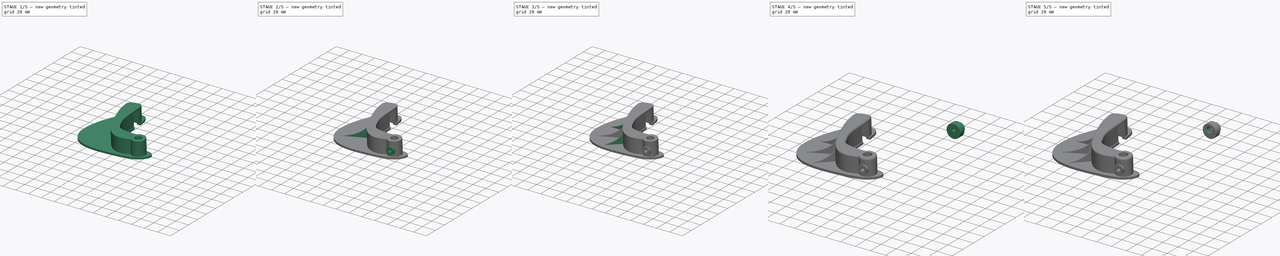
[diagram: build sequence overview — one tinted view per stage of 5, left to right]
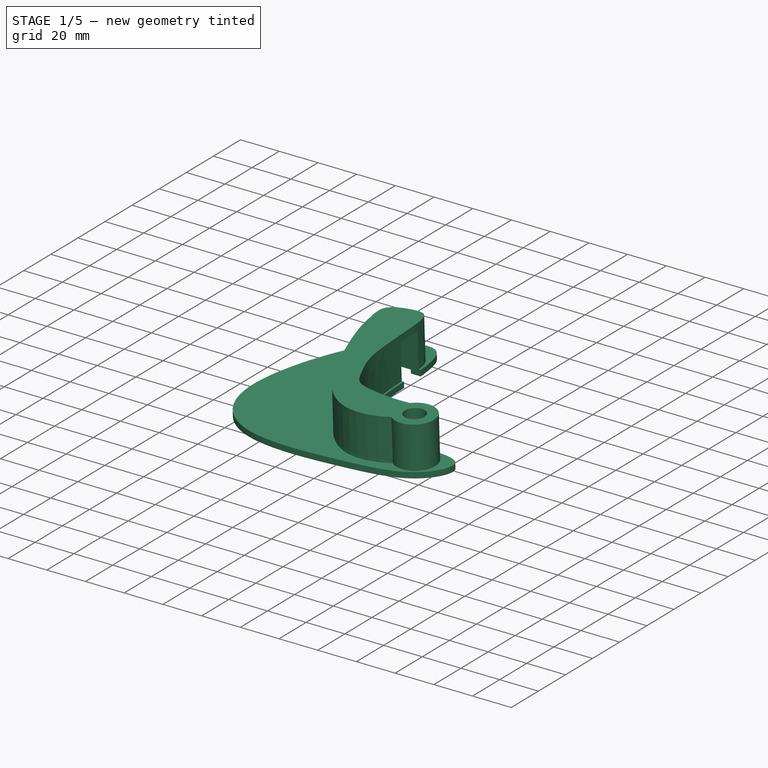
[diagram: stage 1 of 5 — iso view after this stage's code; geometry added in this stage tinted green]
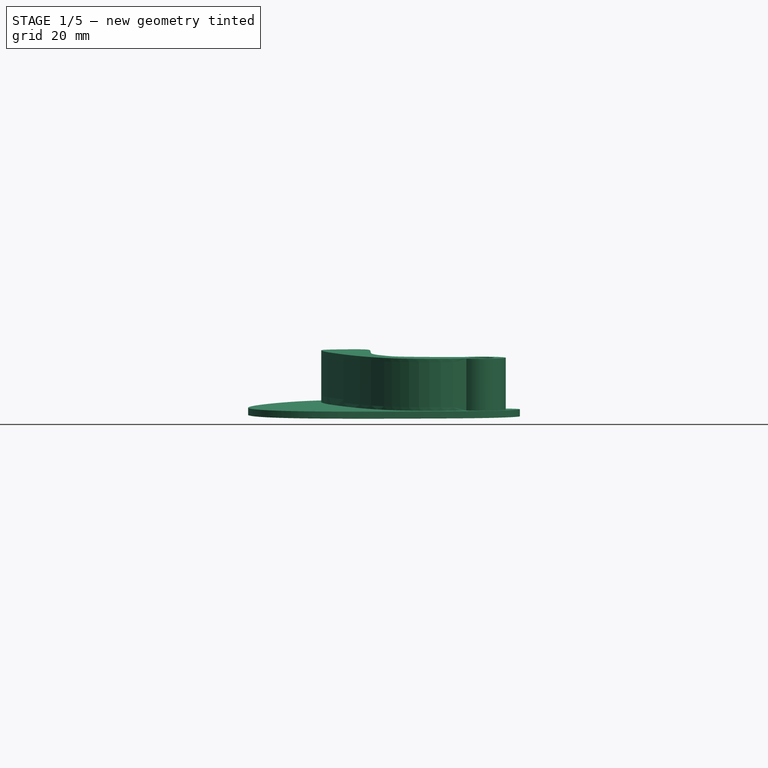
[diagram: stage 1 of 5 — front view after this stage's code; geometry added in this stage tinted green]
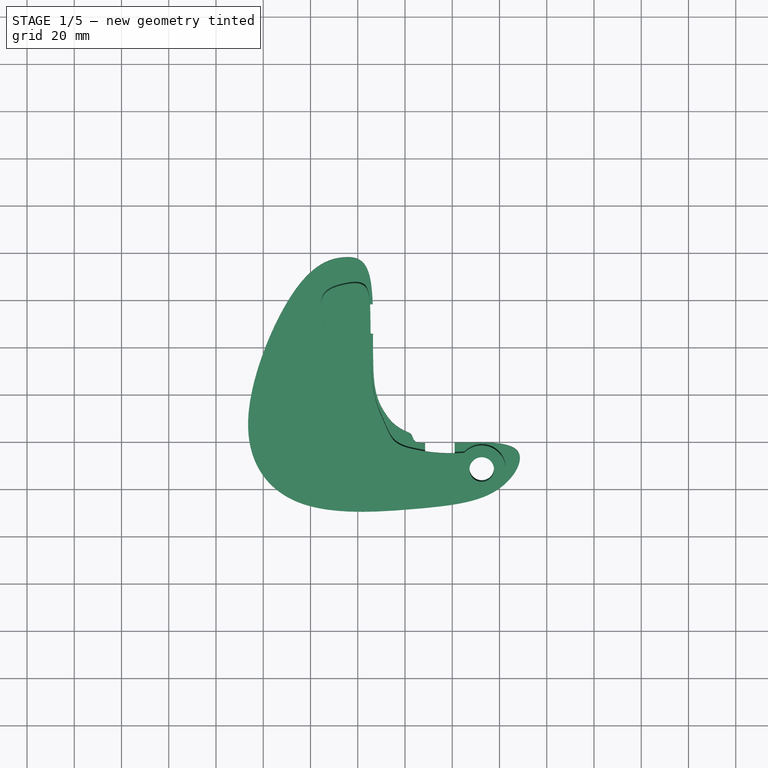
[diagram: stage 1 of 5 — top view after this stage's code; geometry added in this stage tinted green]
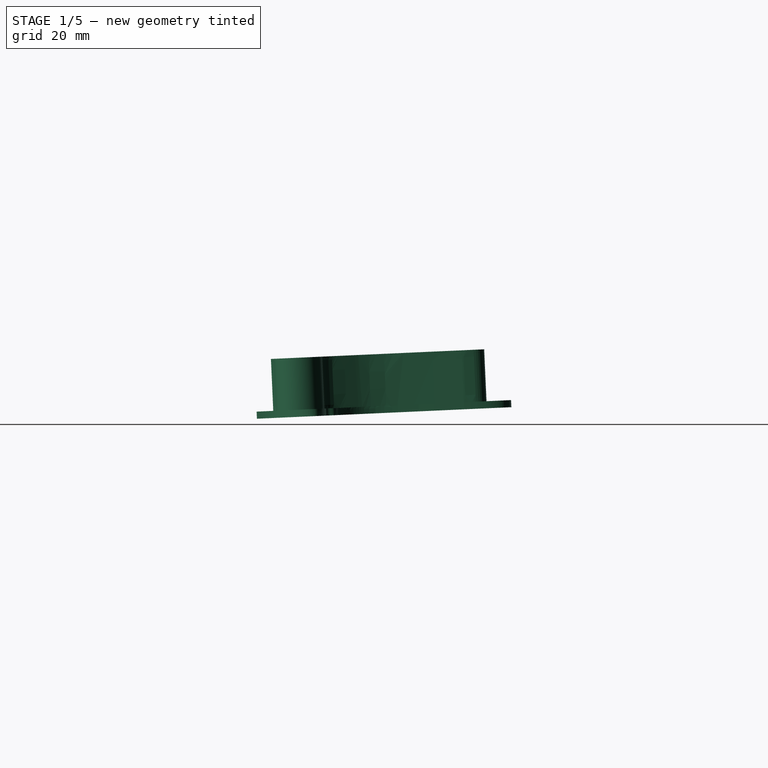
[diagram: stage 1 of 5 — right view after this stage's code; geometry added in this stage tinted green]
FCSTD DOCUMENT  (FreeCAD 0.19R24291 (Git))
Label: mezzo_pulpito_v2
License: All rights reserved
LicenseURL: http://en.wikipedia.org/wiki/All_rights_reserved
objects: Sketcher::SketchObject×11, PartDesign::Pad×8, PartDesign::Plane×4, PartDesign::Pocket×3, PartDesign::Body×3, PartDesign::ShapeBinder×2, PartDesign::Chamfer×2, PartDesign::Fillet×2, PartDesign::FeatureBase×1
note: 51 computed .brp shape members not serialized (recipe doc carries the construction recipe); baked Part::Feature solids carry a one-line shape summary decoded from their .brp

FEATURE [PartDesign::ShapeBinder] CopyPart__Feature001
  TraceSupport = false
FEATURE [PartDesign::ShapeBinder] CopyPart__Feature
  TraceSupport = false
FEATURE [PartDesign::Plane] DatumPlane
  Length = 139.761
  MapMode = 45
  Placement = pos=(0,76.6965,-46.0705) rot=(0.022662,-0.022662,0.999486;1.57131rad)
  ResizeMode = 0
  Support = -> [CopyPart__Feature,CopyPart__Feature001]
  Width = 199.066
FEATURE [Sketcher::SketchObject] Sketch  label="plate"
  FullyConstrained = false
  MapMode = 5
  Placement = pos=(0,76.6965,-46.0705) rot=(0.022662,-0.022662,0.999486;1.57131rad)
  Support = -> [DatumPlane]
  sketch-geometry (38):
    g0-g17: Circle x18 (B-spline internal-alignment scaffolding for g18; pole/knot coordinates omitted)
    g18: BSplineCurve PolesCount=18 KnotsCount=19 Degree=3 IsPeriodic=1
    g19-g36: GeomPoint x18 (B-spline internal-alignment scaffolding for g18; pole/knot coordinates omitted)
    g37: Circle CenterX=-87.641 CenterY=47.5346 CenterZ=0 NormalX=0 NormalY=0 NormalZ=1 AngleXU=0 Radius=5.2
  constraints (5):
    c: Weight(g0) = 1
    c: Equal(g0, g1-g17) x17
    c: InternalAlignment(g0-g17 -> g18) x18
    c: InternalAlignment(g19-g36 -> g18) x18
    c: Radius(g37) = 5.2
FEATURE [Sketcher::SketchObject] Sketch004  label="side"
  ExternalGeometry = -> [Sketch]
  FullyConstrained = false
  MapMode = 5
  Placement = pos=(0,76.5606,-43.0736) rot=(0.022662,-0.022662,0.999486;1.57131rad)
  sketch-geometry (41):
    g0: Circle CenterX=-80.5788 CenterY=54.8912 CenterZ=0 NormalX=0 NormalY=0 NormalZ=1 AngleXU=0 Radius=1
    g1: Circle CenterX=-81.2795 CenterY=64.643 CenterZ=0 NormalX=0 NormalY=0 NormalZ=1 AngleXU=0 Radius=1
    g2: BSplineCurve PolesCount=3 KnotsCount=2 Degree=2 IsPeriodic=0
    g3: GeomPoint X=-80.5788 Y=54.8912 Z=0
    g4: GeomPoint X=-79.6966 Y=73.0826 Z=0
    g5-g21: Circle x17 (B-spline internal-alignment scaffolding for g22; pole/knot coordinates omitted)
    g22: BSplineCurve PolesCount=18 KnotsCount=16 Degree=3 IsPeriodic=0
    g23-g38: GeomPoint x16 (B-spline internal-alignment scaffolding for g22; pole/knot coordinates omitted)
    g39: ArcOfCircle CenterX=-87.641 CenterY=47.5346 CenterZ=0 NormalX=0 NormalY=0 NormalZ=1 AngleXU=0 Radius=10.1977 StartAngle=2.44857 EndAngle=7.089
    g40: Circle CenterX=-87.641 CenterY=47.5346 CenterZ=0 NormalX=0 NormalY=0 NormalZ=1 AngleXU=0 Radius=5.2
  constraints (14):
    c: Weight(g0) = 1
    c: Equal(g0,g1)
    c: InternalAlignment(g0,g2)
    c: InternalAlignment(g1,g2)
    c: InternalAlignment(g3,g2)
    c: InternalAlignment(g4,g2)
    c: InternalAlignment(g5-g21 -> g22) x17
    c: InternalAlignment(g23-g38 -> g22) x16
    c: Coincident(g40,g39)
    c: Radius(g40) = 5.2
    c: Coincident(g22,g2)
    c: Coincident(g2,g39)
    c: Coincident(g22,g39)
    c: Coincident(g39,g-3)
FEATURE [PartDesign::Pad] Pad
  Direction = (1,1,1)
  Length = 3
  Length2 = 100
  Placement = pos=(0,76.6965,-46.0705) rot=(0.022662,-0.022662,0.999486;1.57131rad)
  Profile = -> Sketch
  Refine = true
  Type = 0
FEATURE [PartDesign::Pad] Pad004
  BaseFeature = -> Pad
  Direction = (1,1,1)
  Length = 22
  Length2 = 100
  Placement = pos=(0,76.6965,-46.0705) rot=(0.022662,-0.022662,0.999486;1.57131rad)
  Profile = -> Sketch004
  Refine = true
  Type = 0
FEATURE [Sketcher::SketchObject] Sketch008
  AttachmentOffset = pos=(0,0,1) rot=(0,0,1;0rad)
  FullyConstrained = false
  MapMode = 5
  Placement = pos=(0,76.7418,-47.0695) rot=(0.707016,0.707016,0.01603;3.17365rad)
  Support = -> [Pad004]
  sketch-geometry (16):
    g0: LineSegment StartX=-75.2861 StartY=-59.0042 StartZ=0 EndX=-81.2861 EndY=-59.0042 EndZ=0
    g1: LineSegment StartX=-81.2861 StartY=-71.5042 StartZ=0 EndX=-75.2861 EndY=-71.5042 EndZ=0
    g2: LineSegment StartX=-75.2861 StartY=-71.5042 StartZ=0 EndX=-75.2861 EndY=-59.0042 EndZ=0
    g3: LineSegment StartX=-90.0861 StartY=-56.0042 StartZ=0 EndX=-81.2861 EndY=-56.0042 EndZ=0
    g4: LineSegment StartX=-81.2861 StartY=-74.5042 StartZ=0 EndX=-90.0861 EndY=-74.5042 EndZ=0
    g5: LineSegment StartX=-90.0861 StartY=-74.5042 StartZ=0 EndX=-90.0861 EndY=-56.0042 EndZ=0
    g6: LineSegment StartX=-81.2861 StartY=-59.0042 StartZ=0 EndX=-81.2861 EndY=-56.0042 EndZ=0
    g7: LineSegment StartX=-81.2861 StartY=-74.5042 StartZ=0 EndX=-81.2861 EndY=-71.5042 EndZ=0
    g8: LineSegment StartX=-30.8421 StartY=-92.3713 StartZ=0 EndX=-30.8421 EndY=-98.3713 EndZ=0
    g9: LineSegment StartX=-30.8421 StartY=-98.3713 StartZ=0 EndX=-33.8421 EndY=-98.3713 EndZ=0
    g10: LineSegment StartX=-33.8421 StartY=-98.3713 StartZ=0 EndX=-33.8421 EndY=-107.171 EndZ=0
    g11: LineSegment StartX=-33.8421 StartY=-107.171 StartZ=0 EndX=-15.3421 EndY=-107.171 EndZ=0
    g12: LineSegment StartX=-15.3421 StartY=-107.171 StartZ=0 EndX=-15.3421 EndY=-98.7791 EndZ=0
    g13: LineSegment StartX=-15.3421 StartY=-98.7791 StartZ=0 EndX=-18.3421 EndY=-98.7791 EndZ=0
    g14: LineSegment StartX=-18.3421 StartY=-98.7791 StartZ=0 EndX=-18.3421 EndY=-92.3713 EndZ=0
    g15: LineSegment StartX=-18.3421 StartY=-92.3713 StartZ=0 EndX=-30.8421 EndY=-92.3713 EndZ=0
  constraints (43):
    c: Coincident(g1,g2)
    c: Coincident(g2,g0)
    c: Horizontal(g0)
    c: Horizontal(g1)
    c: Vertical(g2)
    c: DistanceY(g2,g2) = 12.5
    c: Coincident(g4,g5)
    c: Coincident(g5,g3)
    c: Horizontal(g3)
    c: Horizontal(g4)
    c: Vertical(g5)
    c: Coincident(g6,g0)
    c: Coincident(g6,g3)
    c: Coincident(g7,g4)
    c: Coincident(g7,g1)
    c: Parallel(g7,g6)
    c: Parallel(g6,g2)
    c: Distance(g0) = 6
    c: Distance(g1) = 6
    c: Distance(g5) = 18.5
    c: Distance(g3) = 8.8
    c: Distance(g6) = 3
    c: Vertical(g8)
    c: Coincident(g8,g9)
    c: Horizontal(g9)
    c: Coincident(g9,g10)
    c: Vertical(g10)
    c: Coincident(g10,g11)
    c: Horizontal(g11)
    c: Coincident(g11,g12)
    c: Vertical(g12)
    c: Coincident(g12,g13)
    c: Horizontal(g13)
    c: Coincident(g13,g14)
    c: Vertical(g14)
    c: Coincident(g14,g15)
    c: Coincident(g15,g8)
    c: Horizontal(g15)
    c: Equal(g11,g5)
    c: Equal(g15,g2)
    c: Equal(g8,g1)
    c: Equal(g9,g6)
    c: Equal(g10,g3)
FEATURE [PartDesign::Pocket] Pocket001
  BaseFeature = -> Pad004
  Length = 22.5
  Length2 = 100
  Placement = pos=(0,76.6965,-46.0705) rot=(0.022662,-0.022662,0.999486;1.57131rad)
  Profile = -> Sketch008
  Refine = true
  Type = 0
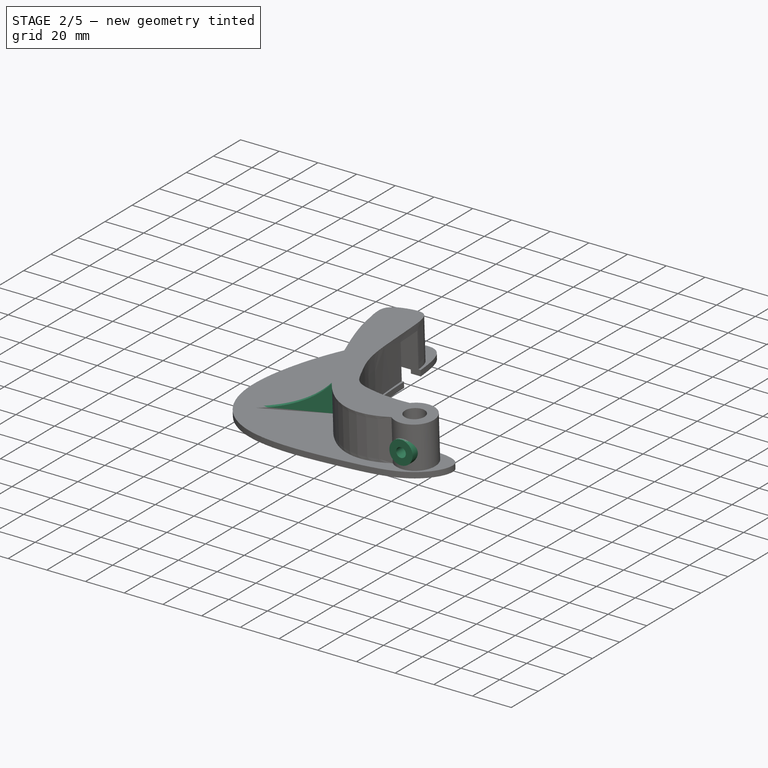
[diagram: stage 2 of 5 — iso view after this stage's code; geometry added in this stage tinted green]
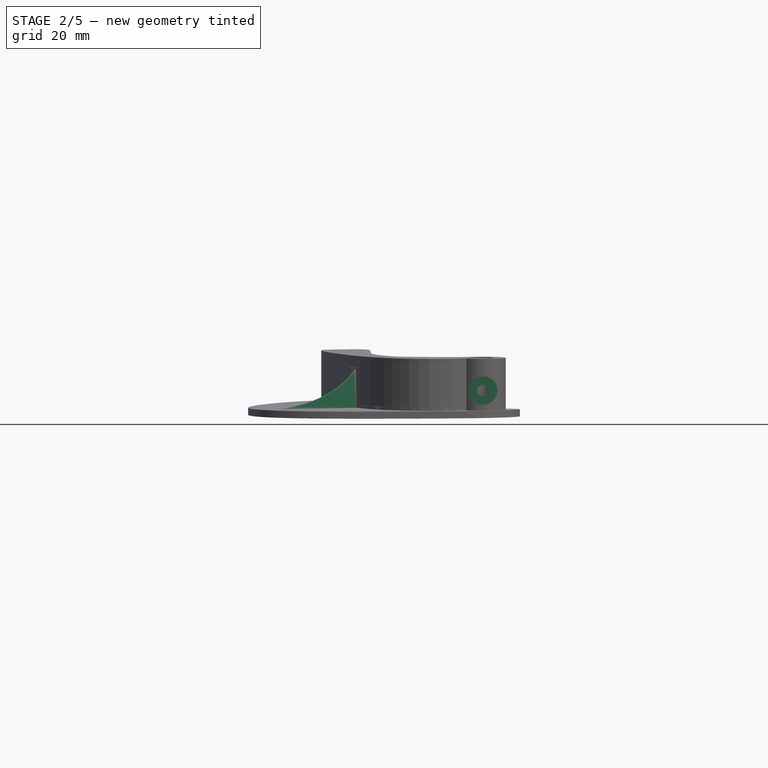
[diagram: stage 2 of 5 — front view after this stage's code; geometry added in this stage tinted green]
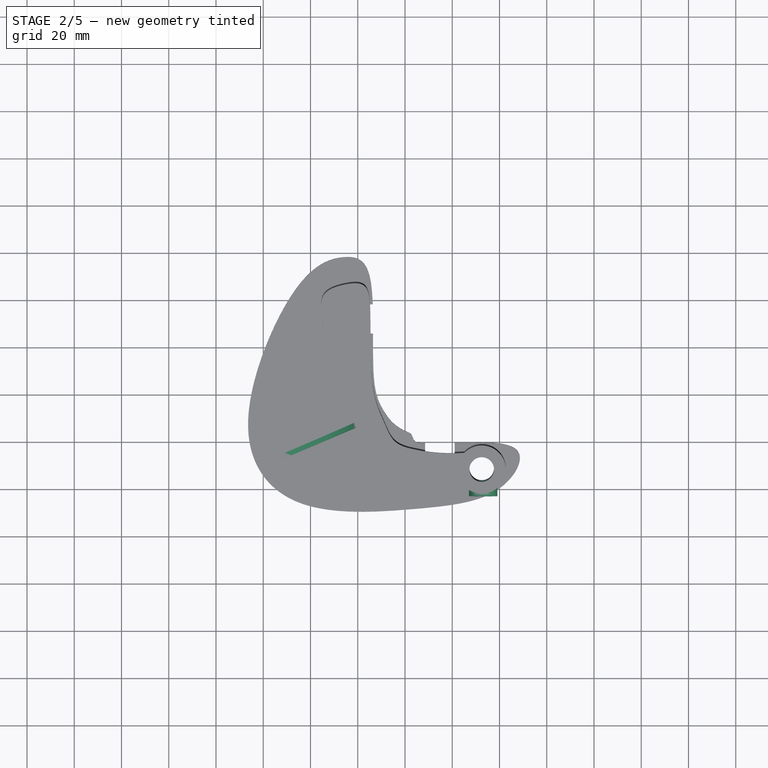
[diagram: stage 2 of 5 — top view after this stage's code; geometry added in this stage tinted green]
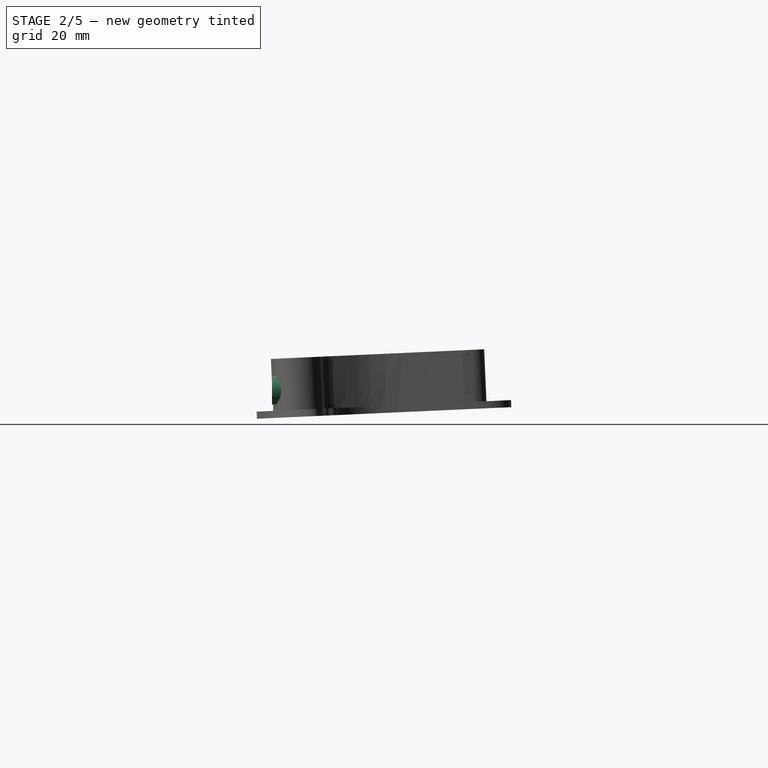
[diagram: stage 2 of 5 — right view after this stage's code; geometry added in this stage tinted green]
FEATURE [Sketcher::SketchObject] Sketch009
  AttachmentOffset = pos=(-1,-2,23) rot=(0,0,1;0rad)
  FullyConstrained = false
  MapMode = 5
  Placement = pos=(-1,-23,-2) rot=(1,0,0;1.5708rad)
  Support = -> [XZ_Plane]
  sketch-geometry (1):
    g0: Circle CenterX=-45.9246 CenterY=-36.8682 CenterZ=0 NormalX=0 NormalY=0 NormalZ=1 AngleXU=0 Radius=6
  constraints (1):
    c: Radius(g0) = 6
FEATURE [PartDesign::Pad] Pad005
  BaseFeature = -> Pocket001
  Direction = (0,1,0)
  Length = 5
  Length2 = 100
  Placement = pos=(0,76.6965,-46.0705) rot=(0.022662,-0.022662,0.999486;1.57131rad)
  Profile = -> Sketch009
  Refine = true
  Type = 0
  UseCustomVector = true
FEATURE [Sketcher::SketchObject] Sketch010
  FullyConstrained = false
  MapMode = 5
  Placement = pos=(-2e-14,-23,-46.0705) rot=(1,0,0;1.5708rad)
  sketch-geometry (1):
    g0: Circle CenterX=-46.9189 CenterY=7.20058 CenterZ=0 NormalX=0 NormalY=0 NormalZ=1 AngleXU=0 Radius=2.5
  constraints (1):
    c: Radius(g0) = 2.5
FEATURE [PartDesign::Pocket] Pocket002
  BaseFeature = -> Pad005
  Length = 10
  Length2 = 100
  Placement = pos=(0,76.6965,-46.0705) rot=(0.022662,-0.022662,0.999486;1.57131rad)
  Profile = -> Sketch010
  Refine = true
  Type = 0
FEATURE [PartDesign::Plane] DatumPlane001
  AttachmentOffset = pos=(51,0,0) rot=(0,-1,0;1.16937rad)
  Length = 224.863
  MapMode = 5
  Placement = pos=(1.13e-14,51,-1.13e-14) rot=(0.961012,0.19552,0.19552;1.61055rad)
  ResizeMode = 0
  Support = -> [YZ_Plane]
  Width = 100.529
FEATURE [PartDesign::Plane] DatumPlane002
  AttachmentOffset = pos=(78,0,0) rot=(0,-1,0;0.837758rad)
  Length = 224.732
  MapMode = 5
  Placement = pos=(1.73e-14,78,-1.73e-14) rot=(0.87885,0.337359,0.337359;1.69958rad)
  ResizeMode = 0
  Support = -> [YZ_Plane]
  Width = 100.522
FEATURE [PartDesign::Plane] DatumPlane003
  AttachmentOffset = pos=(22,0,0) rot=(0,1,0;4.69494rad)
  Length = 196.154
  MapMode = 5
  Placement = pos=(4.9e-15,22,-4.9e-15) rot=(-0.999924,0.008726,0.008726;4.71231rad)
  ResizeMode = 0
  Support = -> [YZ_Plane]
  Width = 98.8077
FEATURE [Sketcher::SketchObject] Sketch011
  FullyConstrained = false
  MapMode = 5
  Placement = pos=(1.42e-14,51,-1.13e-14) rot=(0.961012,0.19552,0.19552;1.61055rad)
  Support = -> [DatumPlane001]
  sketch-geometry (8):
    g0: Circle CenterX=-106.979 CenterY=-24.4572 CenterZ=0 NormalX=0 NormalY=0 NormalZ=1 AngleXU=0 Radius=1
    g1: Circle CenterX=-116.544 CenterY=-44.9504 CenterZ=0 NormalX=0 NormalY=0 NormalZ=1 AngleXU=0 Radius=1
    g2: Circle CenterX=-151.542 CenterY=-47.5706 CenterZ=0 NormalX=0 NormalY=0 NormalZ=1 AngleXU=0 Radius=1
    g3: BSplineCurve PolesCount=3 KnotsCount=2 Degree=2 IsPeriodic=0
    g4: GeomPoint X=-106.979 Y=-24.4572 Z=0
    g5: GeomPoint X=-151.542 Y=-47.5706 Z=0
    g6: LineSegment StartX=-151.542 StartY=-47.5706 StartZ=0 EndX=-106.017 EndY=-47.5706 EndZ=0
    g7: LineSegment StartX=-106.017 StartY=-47.5706 StartZ=0 EndX=-106.979 EndY=-24.4572 EndZ=0
  constraints (12):
    c: Weight(g0) = 1
    c: Equal(g0,g1)
    c: Equal(g0,g2)
    c: InternalAlignment(g0,g3)
    c: InternalAlignment(g1,g3)
    c: InternalAlignment(g2,g3)
    c: InternalAlignment(g4,g3)
    c: InternalAlignment(g5,g3)
    c: Coincident(g6,g3)
    c: Horizontal(g6)
    c: Coincident(g6,g7)
    c: Coincident(g7,g3)
FEATURE [PartDesign::Pad] Pad006
  BaseFeature = -> Pocket002
  Direction = (1,1,1)
  Length = 2
  Length2 = 100
  Placement = pos=(0,76.6965,-46.0705) rot=(0.022662,-0.022662,0.999486;1.57131rad)
  Profile = -> Sketch011
  Refine = true
  Type = 0
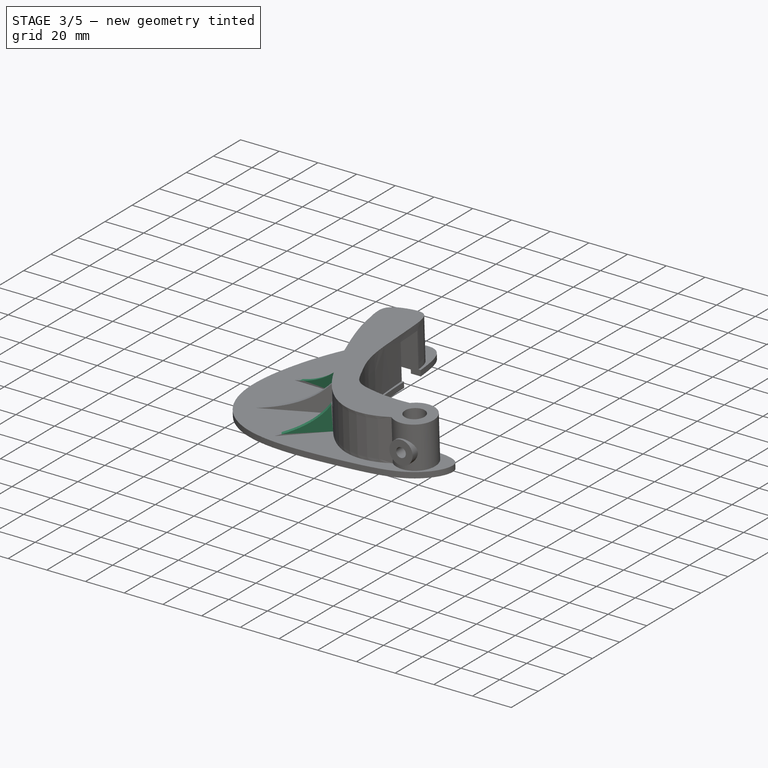
[diagram: stage 3 of 5 — iso view after this stage's code; geometry added in this stage tinted green]
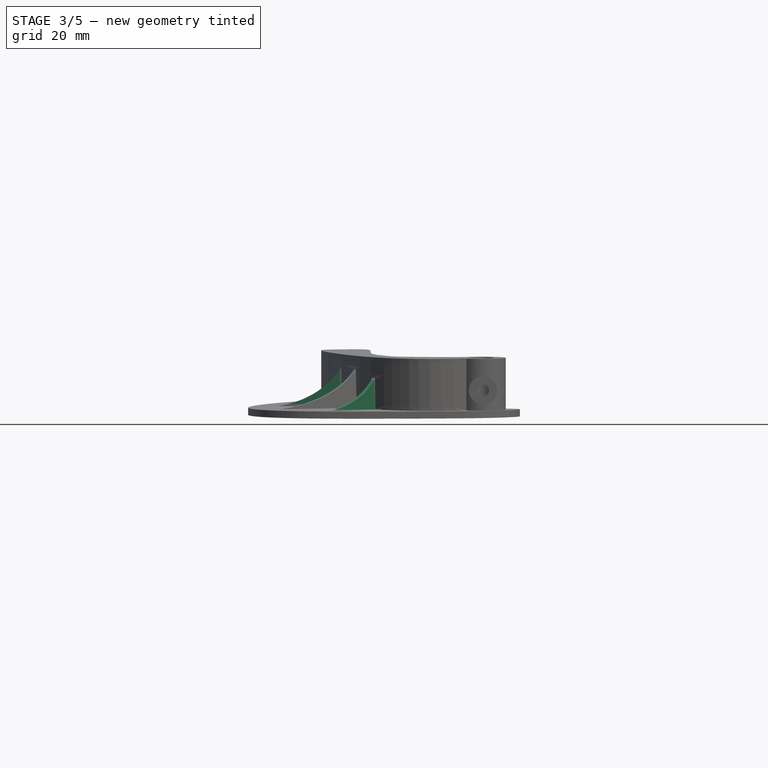
[diagram: stage 3 of 5 — front view after this stage's code; geometry added in this stage tinted green]
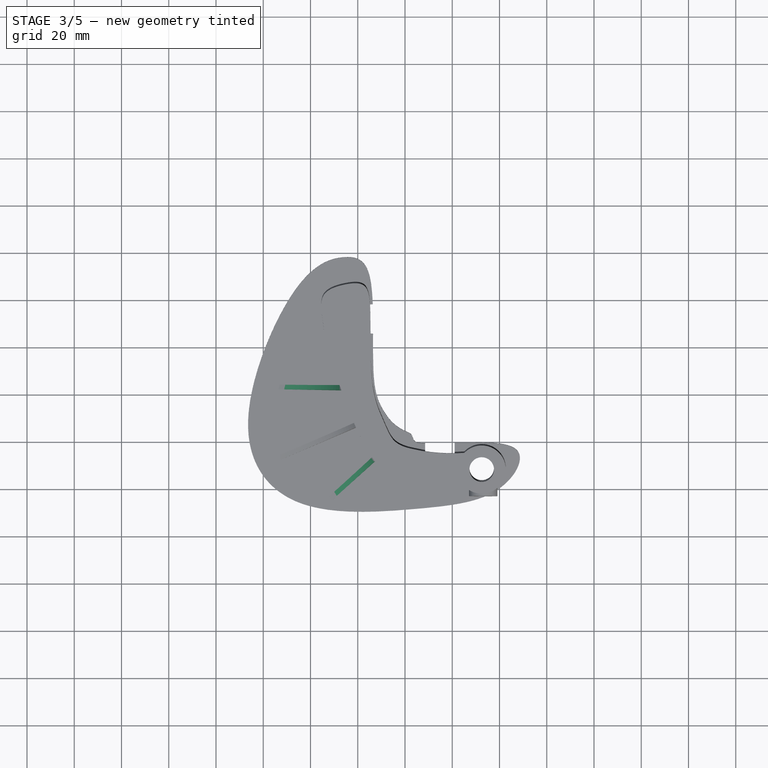
[diagram: stage 3 of 5 — top view after this stage's code; geometry added in this stage tinted green]
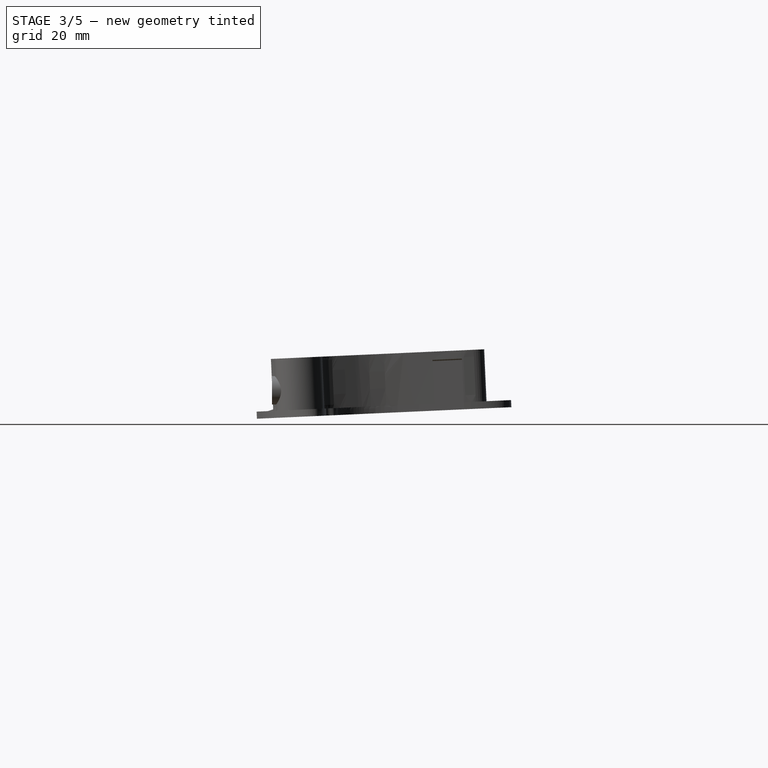
[diagram: stage 3 of 5 — right view after this stage's code; geometry added in this stage tinted green]
FEATURE [Sketcher::SketchObject] Sketch012
  FullyConstrained = false
  MapMode = 5
  Placement = pos=(1.42e-14,78,-1.73e-14) rot=(0.87885,0.337359,0.337359;1.69958rad)
  Support = -> [DatumPlane002]
  sketch-geometry (8):
    g0: Circle CenterX=-155.587 CenterY=-48.4976 CenterZ=0 NormalX=0 NormalY=0 NormalZ=1 AngleXU=0 Radius=1
    g1: Circle CenterX=-127.181 CenterY=-43.8616 CenterZ=0 NormalX=0 NormalY=0 NormalZ=1 AngleXU=0 Radius=1
    g2: Circle CenterX=-122.798 CenterY=-25.3177 CenterZ=0 NormalX=0 NormalY=0 NormalZ=1 AngleXU=0 Radius=1
    g3: BSplineCurve PolesCount=3 KnotsCount=2 Degree=2 IsPeriodic=0
    g4: GeomPoint X=-155.587 Y=-48.4976 Z=0
    g5: GeomPoint X=-122.798 Y=-25.3177 Z=0
    g6: LineSegment StartX=-155.587 StartY=-48.4976 StartZ=0 EndX=-122.798 EndY=-48.4976 EndZ=0
    g7: LineSegment StartX=-122.798 StartY=-48.4976 StartZ=0 EndX=-122.798 EndY=-25.3177 EndZ=0
  constraints (13):
    c: Weight(g0) = 1
    c: Equal(g0,g1)
    c: Equal(g0,g2)
    c: InternalAlignment(g0,g3)
    c: InternalAlignment(g1,g3)
    c: InternalAlignment(g2,g3)
    c: InternalAlignment(g4,g3)
    c: InternalAlignment(g5,g3)
    c: Coincident(g6,g3)
    c: Horizontal(g6)
    c: Coincident(g6,g7)
    c: Coincident(g7,g3)
    c: Vertical(g7)
FEATURE [PartDesign::Pad] Pad007
  BaseFeature = -> Pad006
  Direction = (1,1,1)
  Length = 2
  Length2 = 100
  Placement = pos=(0,76.6965,-46.0705) rot=(0.022662,-0.022662,0.999486;1.57131rad)
  Profile = -> Sketch012
  Refine = true
  Type = 0
FEATURE [Sketcher::SketchObject] Sketch013
  FullyConstrained = false
  MapMode = 5
  Placement = pos=(4.9e-15,22,-4.9e-15) rot=(0.999924,-0.008726,-0.008726;1.57087rad)
  Support = -> [DatumPlane003]
  sketch-geometry (8):
    g0: Circle CenterX=-141.549 CenterY=-46.3643 CenterZ=0 NormalX=0 NormalY=0 NormalZ=1 AngleXU=0 Radius=1
    g1: Circle CenterX=-113.986 CenterY=-45.1842 CenterZ=0 NormalX=0 NormalY=0 NormalZ=1 AngleXU=0 Radius=1
    g2: Circle CenterX=-103.786 CenterY=-23.6058 CenterZ=0 NormalX=0 NormalY=0 NormalZ=1 AngleXU=0 Radius=1
    g3: BSplineCurve PolesCount=3 KnotsCount=2 Degree=2 IsPeriodic=0
    g4: GeomPoint X=-141.549 Y=-46.3643 Z=0
    g5: GeomPoint X=-103.786 Y=-23.6058 Z=0
    g6: LineSegment StartX=-141.549 StartY=-46.3643 StartZ=0 EndX=-102.438 EndY=-48.303 EndZ=0
    g7: LineSegment StartX=-102.438 StartY=-48.303 StartZ=0 EndX=-103.786 EndY=-23.6058 EndZ=0
  constraints (11):
    c: Weight(g0) = 1
    c: Equal(g0,g1)
    c: Equal(g0,g2)
    c: InternalAlignment(g0,g3)
    c: InternalAlignment(g1,g3)
    c: InternalAlignment(g2,g3)
    c: InternalAlignment(g4,g3)
    c: InternalAlignment(g5,g3)
    c: Coincident(g6,g3)
    c: Coincident(g6,g7)
    c: Coincident(g7,g3)
FEATURE [PartDesign::Pad] Pad008
  BaseFeature = -> Pad007
  Direction = (1,1,1)
  Length = 2
  Length2 = 100
  Placement = pos=(0,76.6965,-46.0705) rot=(0.022662,-0.022662,0.999486;1.57131rad)
  Profile = -> Sketch013
  Refine = true
  Type = 0
FEATURE [PartDesign::Chamfer] Chamfer
  Angle = 45
  Base = -> Pad008 [Edge39]
  BaseFeature = -> Pad008
  ChamferType = 0
  FlipDirection = false
  Placement = pos=(0,76.6965,-46.0705) rot=(0.022662,-0.022662,0.999486;1.57131rad)
  Refine = true
  Size = 0.5
  Size2 = 1
  SupportTransform = false
FEATURE [PartDesign::Fillet] Fillet
  Base = -> Chamfer [Face1]
  BaseFeature = -> Chamfer
  Placement = pos=(0,76.6965,-46.0705) rot=(0.022662,-0.022662,0.999486;1.57131rad)
  Radius = 0.3
  Refine = true
  SupportTransform = false
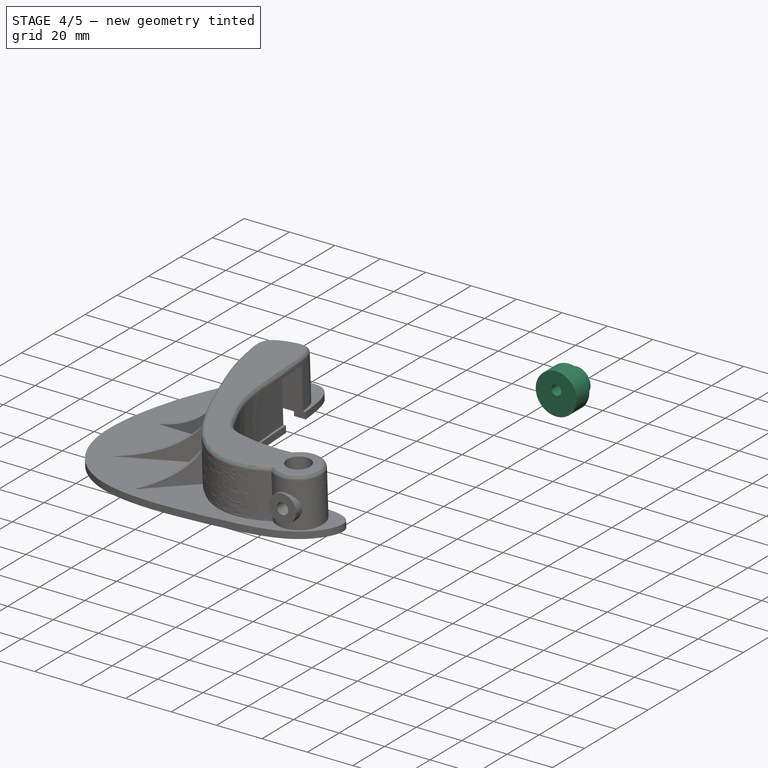
[diagram: stage 4 of 5 — iso view after this stage's code; geometry added in this stage tinted green]
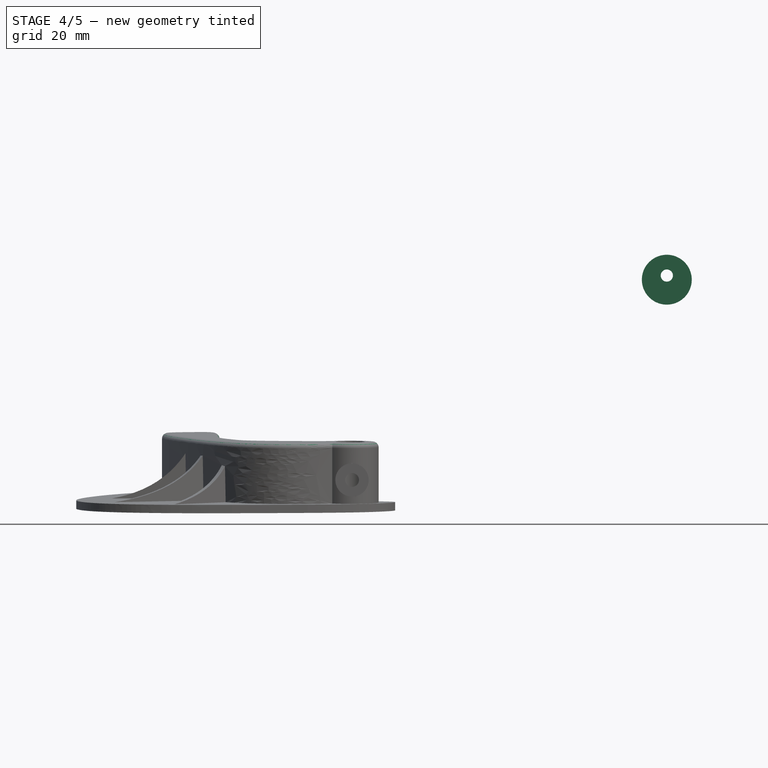
[diagram: stage 4 of 5 — front view after this stage's code; geometry added in this stage tinted green]
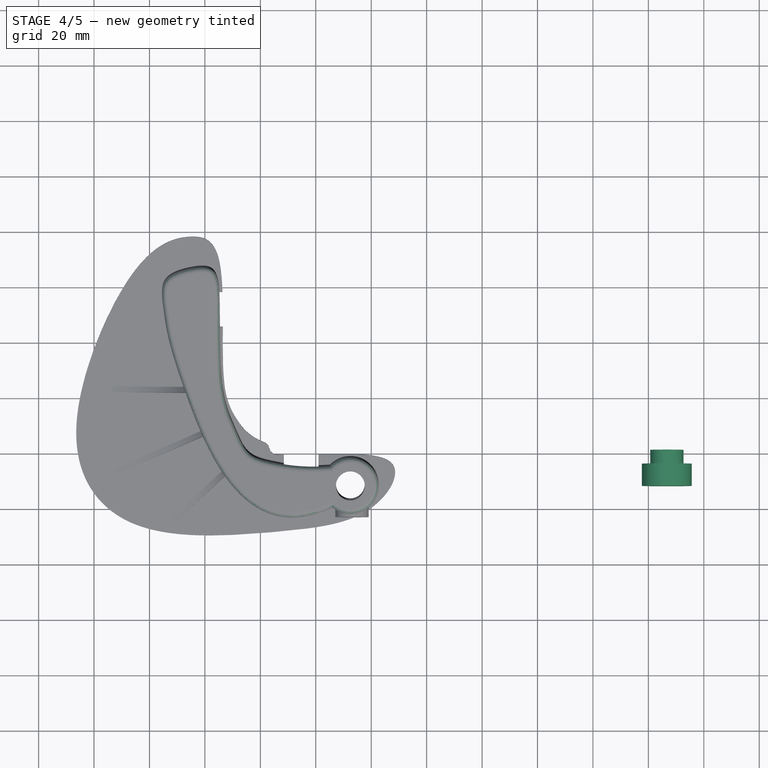
[diagram: stage 4 of 5 — top view after this stage's code; geometry added in this stage tinted green]
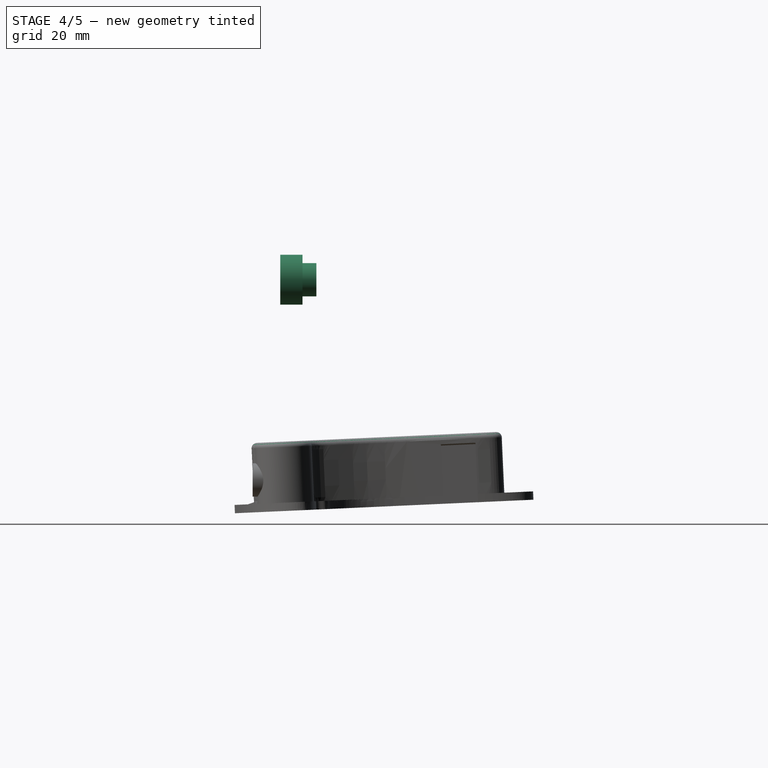
[diagram: stage 4 of 5 — right view after this stage's code; geometry added in this stage tinted green]
FEATURE [Sketcher::SketchObject] Sketch005
  FullyConstrained = false
  MapMode = 5
  Placement = pos=(0,0,0) rot=(1,0,0;1.5708rad)
  Support = -> [XZ_Plane001]
  sketch-geometry (2):
    g0: Circle CenterX=66.6471 CenterY=34.8638 CenterZ=0 NormalX=0 NormalY=0 NormalZ=1 AngleXU=0 Radius=2.2
    g1: Circle CenterX=66.6471 CenterY=33.3638 CenterZ=0 NormalX=0 NormalY=0 NormalZ=1 AngleXU=0 Radius=6
  constraints (4):
    c: Radius(g0) = 2.2
    c: Radius(g1) = 6
    c: Vertical(g0,g1)
    c: DistanceY(g1,g0) = 1.5
FEATURE [PartDesign::Pad] Pad002
  Direction = (1,1,1)
  Length = 5
  Length2 = 100
  Placement = pos=(0,0,0) rot=(1,0,0;1.5708rad)
  Profile = -> Sketch005
  Refine = true
  Type = 0
FEATURE [Sketcher::SketchObject] Sketch006
  FullyConstrained = false
  MapMode = 5
  Placement = pos=(0,-5,0) rot=(1,0,0;1.5708rad)
  Support = -> [Pad002]
  sketch-geometry (2):
    g0: Circle CenterX=66.6417 CenterY=34.8739 CenterZ=0 NormalX=0 NormalY=0 NormalZ=1 AngleXU=0 Radius=2.2
    g1: Circle CenterX=66.6417 CenterY=33.3739 CenterZ=0 NormalX=0 NormalY=0 NormalZ=1 AngleXU=0 Radius=9
  constraints (4):
    c: Radius(g0) = 2.2
    c: Radius(g1) = 9
    c: Vertical(g0,g1)
    c: DistanceY(g1,g0) = 1.5
FEATURE [PartDesign::Pad] Pad003
  BaseFeature = -> Pad002
  Direction = (1,1,1)
  Length = 8
  Length2 = 100
  Placement = pos=(0,0,0) rot=(1,0,0;1.5708rad)
  Profile = -> Sketch006
  Refine = true
  Type = 0
FEATURE [PartDesign::Body] Body002  label="nut2"
  BaseFeature = -> Body001
  Group = -> [Clone]
  Origin = -> Origin002
  Placement = pos=(94,-15.33,-2.61) rot=(0,0,1;1.5708rad)
  Tip = -> Clone
FEATURE [PartDesign::Fillet] Fillet001
  Base = -> Fillet [Edge99,Edge116]
  BaseFeature = -> Fillet
  Placement = pos=(0,76.6965,-46.0705) rot=(0.022662,-0.022662,0.999486;1.57131rad)
  Radius = 2
  Refine = true
  SupportTransform = false
FEATURE [PartDesign::Body] Body  label="half_plate"
  Group = -> [DatumPlane,CopyPart__Feature,CopyPart__Feature001,Sketch,Sketch004,Pad,Pad004,Sketch008,Pocket001,Sketch009,Pad005,Sketch010,Pocket002,DatumPlane001,DatumPlane002,DatumPlane003,Sketch011,Pad006,Sketch012,Pad007,Sketch013,Pad008,Chamfer,Fillet,Fillet001]
  Origin = -> Origin
  Placement = pos=(0,0,0) rot=(0,1,0;3.14159rad)
  Tip = -> Fillet001
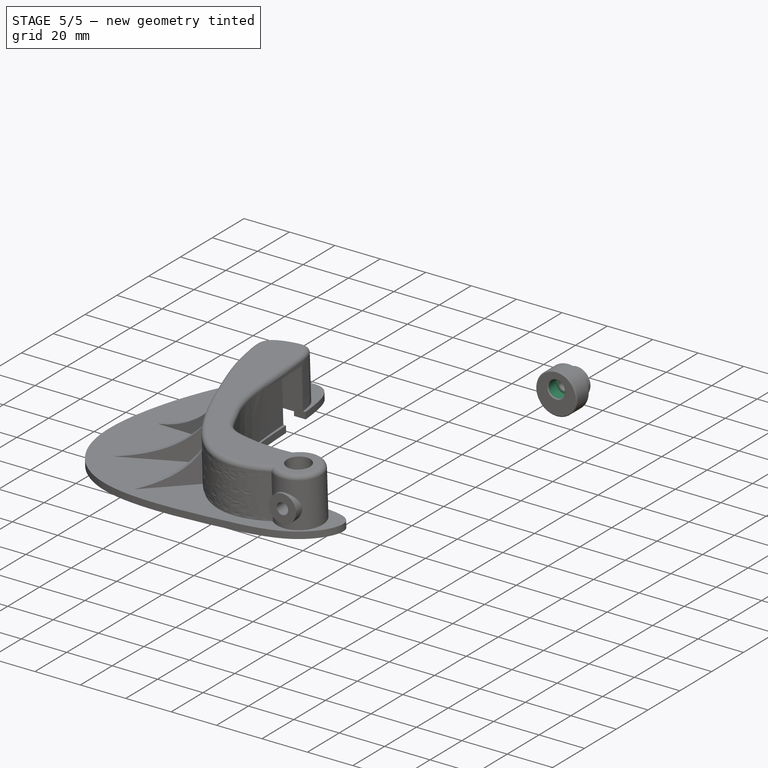
[diagram: stage 5 of 5 — iso view after this stage's code; geometry added in this stage tinted green]
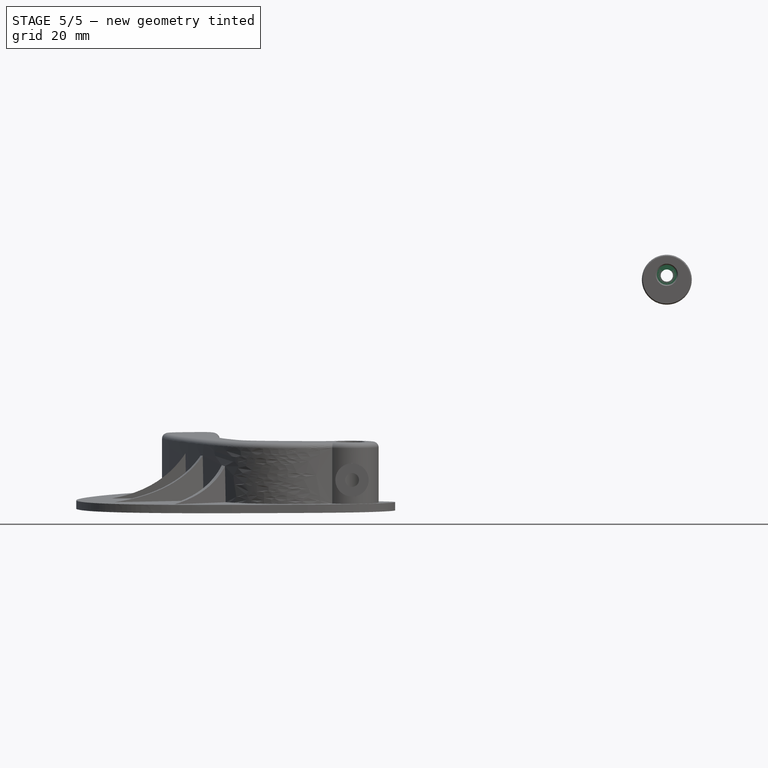
[diagram: stage 5 of 5 — front view after this stage's code; geometry added in this stage tinted green]
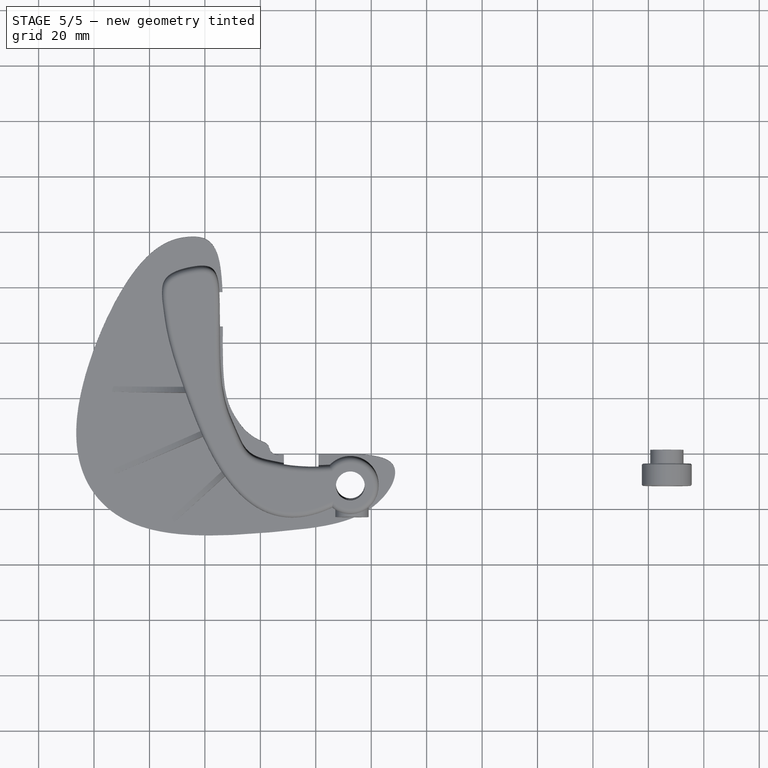
[diagram: stage 5 of 5 — top view after this stage's code; geometry added in this stage tinted green]
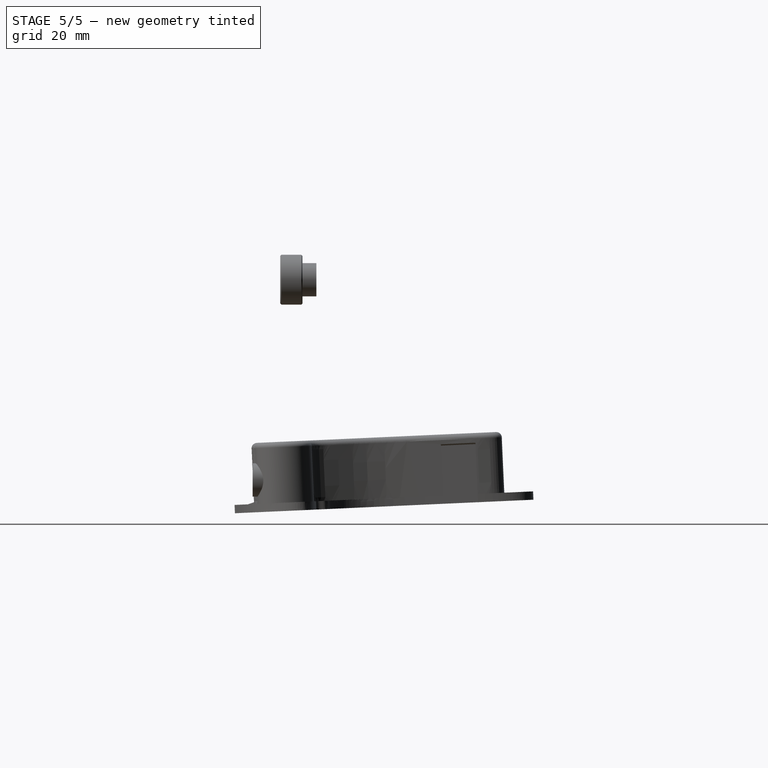
[diagram: stage 5 of 5 — right view after this stage's code; geometry added in this stage tinted green]
FEATURE [Sketcher::SketchObject] Sketch007
  FullyConstrained = false
  MapMode = 5
  Placement = pos=(0,-13,-1e-16) rot=(1,0,0;1.5708rad)
  Support = -> [Pad003]
  sketch-geometry (1):
    g0: Circle CenterX=66.6486 CenterY=35.1489 CenterZ=0 NormalX=0 NormalY=0 NormalZ=1 AngleXU=0 Radius=3.6
  constraints (1):
    c: Radius(g0) = 3.6
FEATURE [PartDesign::Pocket] Pocket
  BaseFeature = -> Pad003
  Length = 5
  Length2 = 100
  Placement = pos=(0,0,0) rot=(1,0,0;1.5708rad)
  Profile = -> Sketch007
  Refine = true
  Type = 0
FEATURE [PartDesign::Chamfer] Chamfer002
  Angle = 45
  Base = -> Pocket [Edge11,Edge5,Edge15]
  BaseFeature = -> Pocket
  ChamferType = 0
  FlipDirection = false
  Placement = pos=(0,0,0) rot=(1,0,0;1.5708rad)
  Refine = true
  Size = 0.4
  Size2 = 1
  SupportTransform = false
FEATURE [PartDesign::Body] Body001  label="nut"
  Group = -> [Sketch005,Pad002,Sketch006,Pad003,Sketch007,Pocket,Chamfer002]
  Origin = -> Origin001
  Placement = pos=(-1,0,0) rot=(0,0,1;0rad)
  Tip = -> Chamfer002
FEATURE [PartDesign::FeatureBase] Clone
  BaseFeature = -> Body001
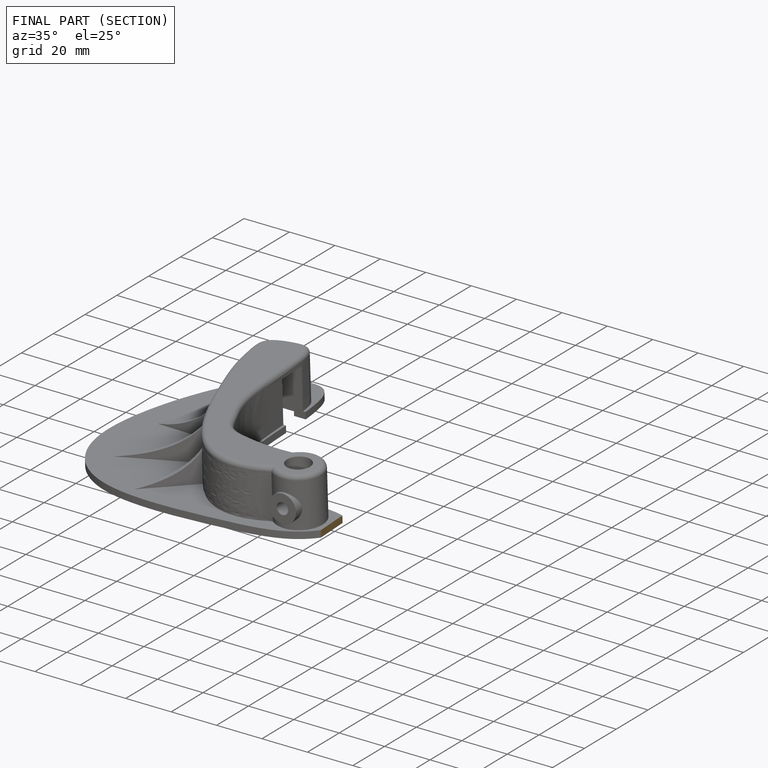
[diagram: finished part — half-section view (interior)]
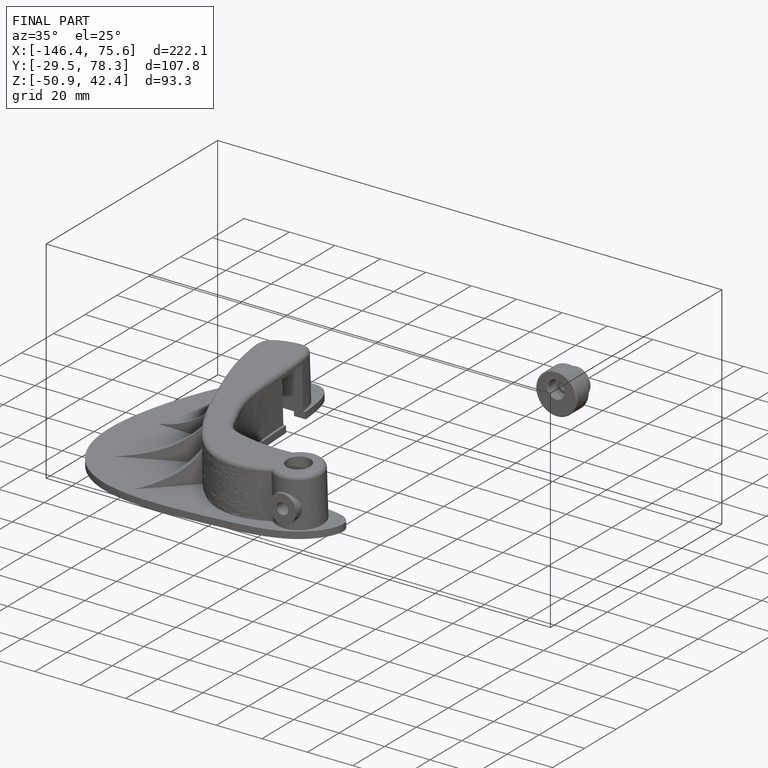
[diagram: finished part — iso view with bounding-box wireframe]
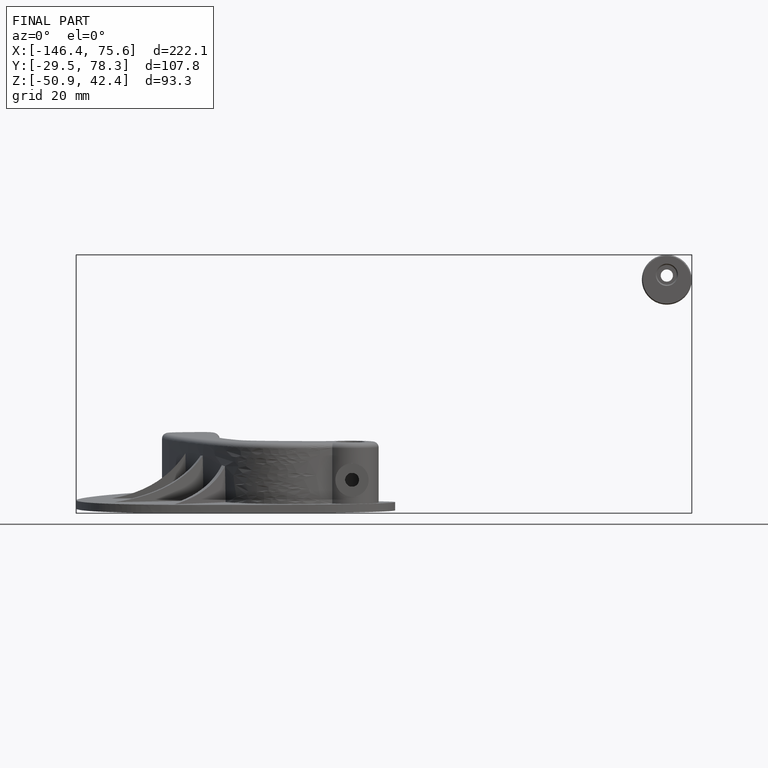
[diagram: finished part — front view with bounding-box wireframe]
